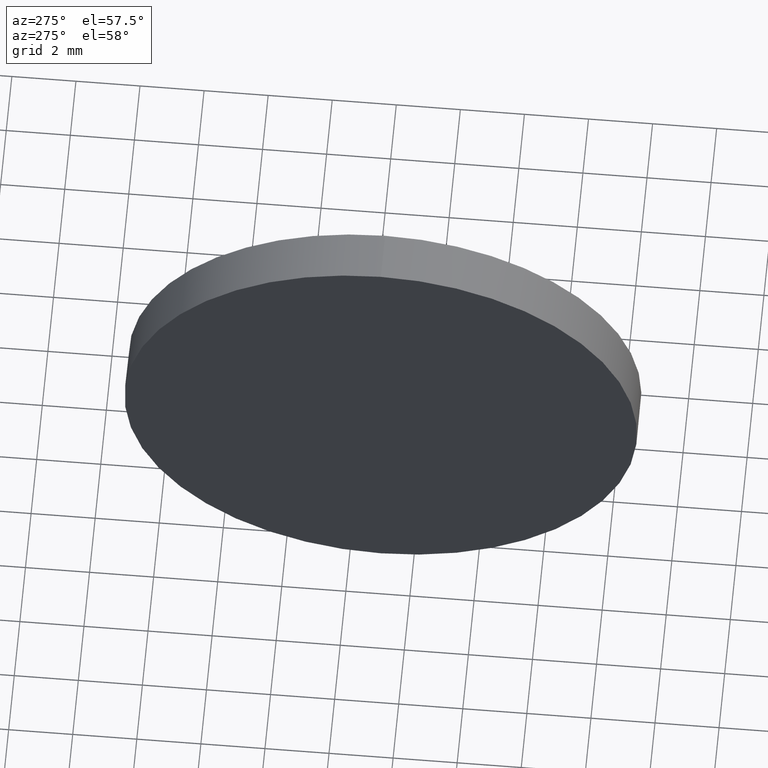
[diagram: clean part render]
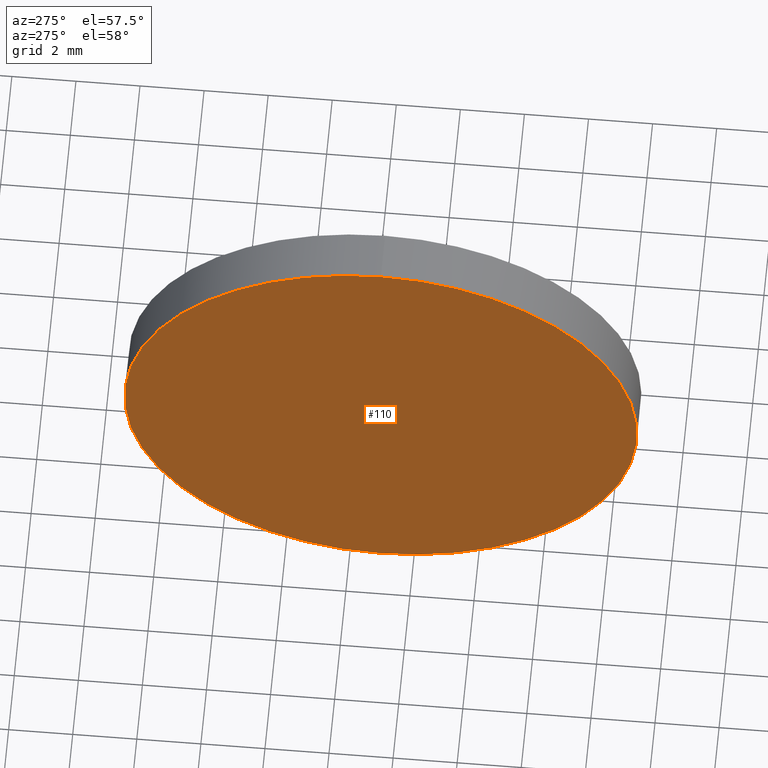
[diagram: same view with one face highlighted and labeled with its STEP entity id]
A machine part, auxiliary view. The second image highlights one B-rep face of the part: STEP entity #110.
In plain terms, the highlighted planar face has unit normal (1, 0, 0).
Its self-contained STEP definition (entity closure, byte-faithful):
#1 = CARTESIAN_POINT ( 'NONE',  ( 799.2693006300039500, 227.0208925470877000, 0.0000000000000000000 ) ) ;
#12 = DIRECTION ( 'NONE',  ( 0.0000000000000000000, 0.0000000000000000000, 1.000000000000000000 ) ) ;
#13 = DIRECTION ( 'NONE',  ( -1.000000000000000000, -0.0000000000000000000, -0.0000000000000000000 ) ) ;
#24 = VERTEX_POINT ( 'NONE', #89 ) ;
#27 = PLANE ( 'NONE',  #70 ) ;
#44 = DIRECTION ( 'NONE',  ( 0.0000000000000000000, 0.0000000000000000000, 1.000000000000000000 ) ) ;
#50 = AXIS2_PLACEMENT_3D ( 'NONE', #1, #13, #12 ) ;
#54 = CARTESIAN_POINT ( 'NONE',  ( 799.2693006300039500, 227.0208925470877000, 7.999999999999979600 ) ) ;
#56 = DIRECTION ( 'NONE',  ( -1.000000000000000000, -0.0000000000000000000, -0.0000000000000000000 ) ) ;
#64 = CIRCLE ( 'NONE', #50, 7.999999999999979600 ) ;
#67 = VERTEX_POINT ( 'NONE', #54 ) ;
#70 = AXIS2_PLACEMENT_3D ( 'NONE', #144, #180, #161 ) ;
#78 = EDGE_CURVE ( 'NONE', #24, #67, #64, .T. ) ;
#89 = CARTESIAN_POINT ( 'NONE',  ( 799.2693006300039500, 227.0208925470877000, -7.999999999999979600 ) ) ;
#108 = CIRCLE ( 'NONE', #155, 7.999999999999979600 ) ;
#110 = ADVANCED_FACE ( 'NONE', ( #184 ), #27, .F. ) ;
#132 = EDGE_CURVE ( 'NONE', #67, #24, #108, .T. ) ;
#139 = ORIENTED_EDGE ( 'NONE', *, *, #78, .T. ) ;
#144 = CARTESIAN_POINT ( 'NONE',  ( 799.2693006300039500, 227.0208925470877000, 0.0000000000000000000 ) ) ;
#150 = ORIENTED_EDGE ( 'NONE', *, *, #132, .T. ) ;
#155 = AXIS2_PLACEMENT_3D ( 'NONE', #164, #56, #44 ) ;
#158 = EDGE_LOOP ( 'NONE', ( #150, #139 ) ) ;
#161 = DIRECTION ( 'NONE',  ( 0.0000000000000000000, 0.0000000000000000000, -1.000000000000000000 ) ) ;
#164 = CARTESIAN_POINT ( 'NONE',  ( 799.2693006300039500, 227.0208925470877000, 0.0000000000000000000 ) ) ;
#180 = DIRECTION ( 'NONE',  ( 1.000000000000000000, 0.0000000000000000000, 0.0000000000000000000 ) ) ;
#184 = FACE_OUTER_BOUND ( 'NONE', #158, .T. ) ;